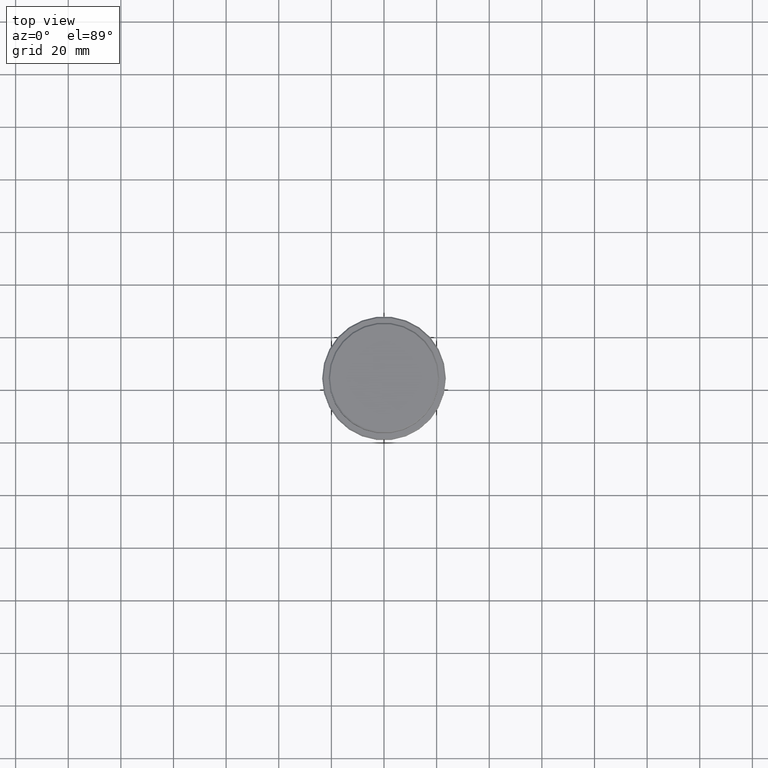
[diagram: clean part render]
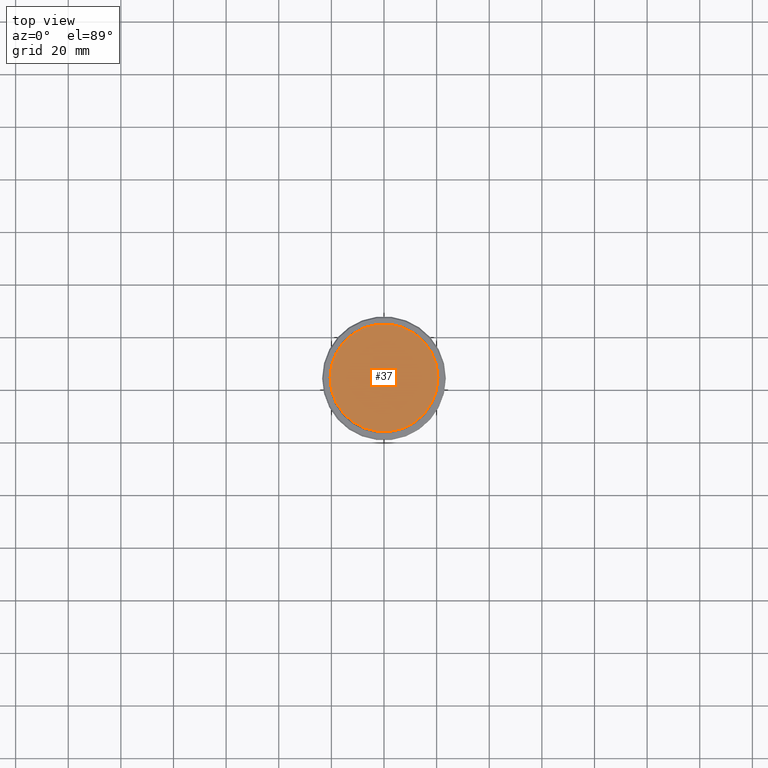
[diagram: same view with one face highlighted and labeled with its STEP entity id]
A machine part, top view. The second image highlights one B-rep face of the part: STEP entity #37.
In plain terms, the highlighted planar face has unit normal (0, -0, 1).
Its self-contained STEP definition (entity closure, byte-faithful):
#37 = ADVANCED_FACE ( 'NONE', ( #431 ), #871, .T. ) ;
#197 = CARTESIAN_POINT ( 'NONE',  ( 0.000000000000000000, 0.000000000000000000, 0.000000000000000000 ) ) ;
#200 = DIRECTION ( 'NONE',  ( 1.000000000000000000, 0.000000000000000000, 0.000000000000000000 ) ) ;
#290 = DIRECTION ( 'NONE',  ( 1.000000000000000000, 0.000000000000000000, 0.000000000000000000 ) ) ;
#336 = CARTESIAN_POINT ( 'NONE',  ( 20.49999999999990763, 2.541142108230752352E-15, 0.000000000000000000 ) ) ;
#367 = CIRCLE ( 'NONE', #678, 20.49999999999990763 ) ;
#431 = FACE_OUTER_BOUND ( 'NONE', #1249, .T. ) ;
#499 = AXIS2_PLACEMENT_3D ( 'NONE', #197, #650, #290 ) ;
#523 = DIRECTION ( 'NONE',  ( 1.000000000000000000, 0.000000000000000000, 0.000000000000000000 ) ) ;
#650 = DIRECTION ( 'NONE',  ( -0.000000000000000000, -0.000000000000000000, 1.000000000000000000 ) ) ;
#678 = AXIS2_PLACEMENT_3D ( 'NONE', #855, #976, #523 ) ;
#753 = VERTEX_POINT ( 'NONE', #803 ) ;
#797 = CIRCLE ( 'NONE', #499, 20.49999999999990763 ) ;
#803 = CARTESIAN_POINT ( 'NONE',  ( -20.49999999999990763, 0.000000000000000000, 0.000000000000000000 ) ) ;
#807 = EDGE_CURVE ( 'NONE', #753, #1038, #797, .T. ) ;
#855 = CARTESIAN_POINT ( 'NONE',  ( 0.000000000000000000, 0.000000000000000000, 0.000000000000000000 ) ) ;
#871 = PLANE ( 'NONE',  #1023 ) ;
#929 = ORIENTED_EDGE ( 'NONE', *, *, #807, .T. ) ;
#976 = DIRECTION ( 'NONE',  ( -0.000000000000000000, -0.000000000000000000, 1.000000000000000000 ) ) ;
#1023 = AXIS2_PLACEMENT_3D ( 'NONE', #1315, #1182, #200 ) ;
#1038 = VERTEX_POINT ( 'NONE', #336 ) ;
#1110 = EDGE_CURVE ( 'NONE', #1038, #753, #367, .T. ) ;
#1182 = DIRECTION ( 'NONE',  ( 0.000000000000000000, -0.000000000000000000, 1.000000000000000000 ) ) ;
#1249 = EDGE_LOOP ( 'NONE', ( #929, #1391 ) ) ;
#1315 = CARTESIAN_POINT ( 'NONE',  ( 0.000000000000000000, 0.000000000000000000, 0.000000000000000000 ) ) ;
#1391 = ORIENTED_EDGE ( 'NONE', *, *, #1110, .T. ) ;